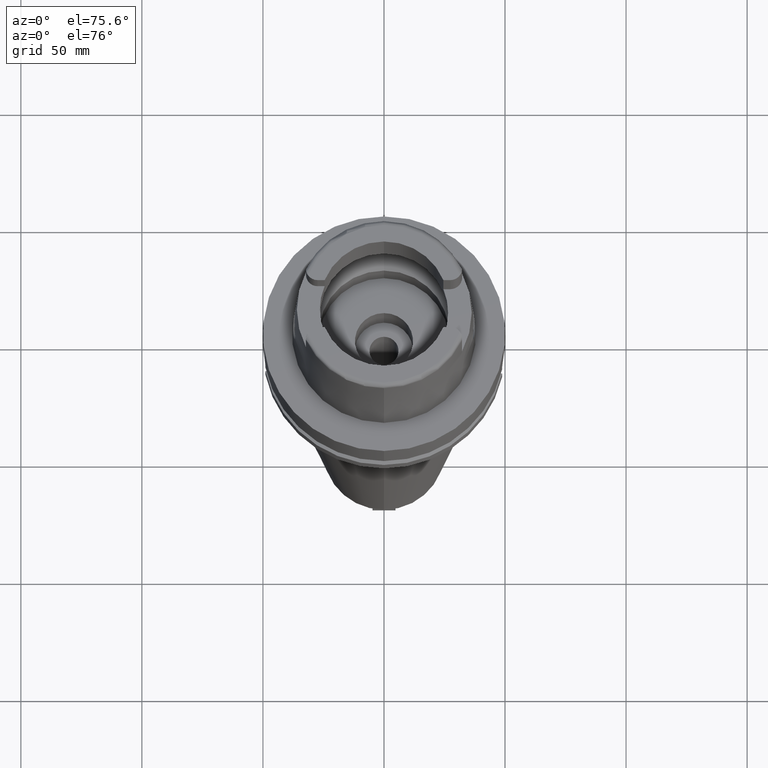
[diagram: clean part render]
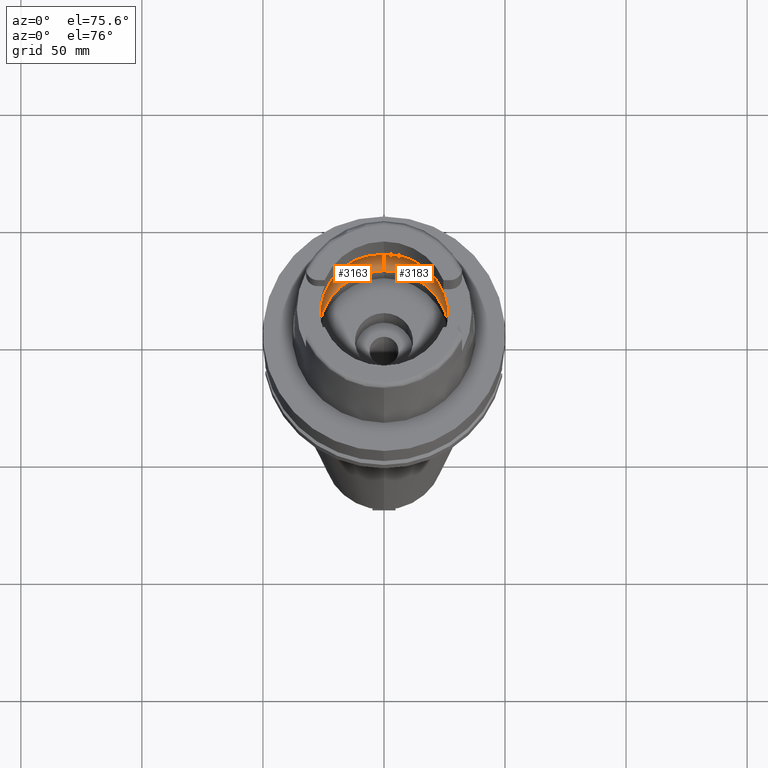
[diagram: same view with one multi-face feature highlighted, each face labeled with its STEP entity id]
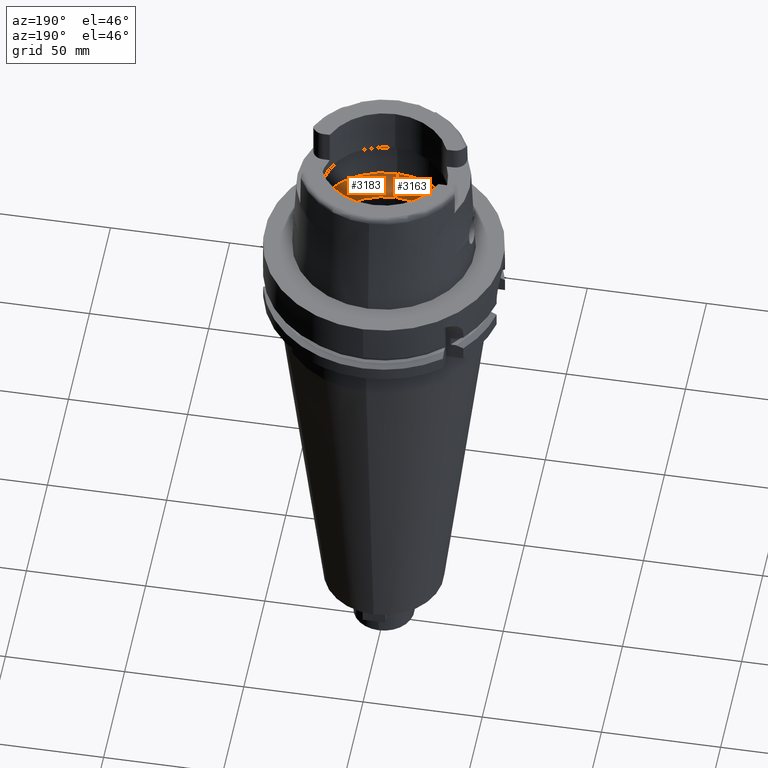
[diagram: same view with one multi-face feature highlighted, each face labeled with its STEP entity id]
A machine part, auxiliary view. The highlighted faces form ONE feature: a constant-radius fillet chain: 2 tangent blend faces with common blend radius 12 mm. The faces share edges in the B-rep.
A second angle (auxiliary view) of the same feature is appended — it is thin or edge-on in the first view.
Their STEP definitions:
[1] entity #3183 (Torus):
#656=CARTESIAN_POINT('',(0.E0,-1.95E1,9.496624327026E0));
#657=DIRECTION('',(-1.E0,0.E0,0.E0));
#658=DIRECTION('',(0.E0,-6.166666666667E-1,-7.872243785746E-1));
#659=AXIS2_PLACEMENT_3D('',#656,#657,#658);
#672=CARTESIAN_POINT('',(3.148971910754E1,0.E0,9.E0));
#673=CARTESIAN_POINT('',(3.148971910754E1,-2.740169050541E-1,9.E0));
#674=CARTESIAN_POINT('',(3.148416957998E1,-8.214776976887E-1,9.037587211562E0));
#675=CARTESIAN_POINT('',(3.145843718743E1,-1.626024717401E0,9.205157265854E0));
#676=CARTESIAN_POINT('',(3.142817844845E1,-2.140614842228E0,9.388245737623E0));
#677=CARTESIAN_POINT('',(3.140918884336E1,-2.390158196044E0,9.496624327026E0));
#682=CARTESIAN_POINT('',(0.E0,0.E0,9.496624327026E0));
#683=DIRECTION('',(0.E0,0.E0,-1.E0));
#684=DIRECTION('',(9.971171061384E-1,-7.587803796965E-2,0.E0));
#685=AXIS2_PLACEMENT_3D('',#682,#683,#684);
#690=CARTESIAN_POINT('',(0.E0,0.E0,4.993178413023E-2));
#691=DIRECTION('',(0.E0,0.E0,1.E0));
#692=DIRECTION('',(0.E0,-1.E0,0.E0));
#693=AXIS2_PLACEMENT_3D('',#690,#691,#692);
#698=CARTESIAN_POINT('',(0.E0,1.95E1,9.496624327026E0));
#699=DIRECTION('',(1.E0,0.E0,0.E0));
#700=DIRECTION('',(0.E0,6.166666666667E-1,-7.872243785746E-1));
#701=AXIS2_PLACEMENT_3D('',#698,#699,#700);
#706=CARTESIAN_POINT('',(0.E0,0.E0,9.496624327026E0));
#707=DIRECTION('',(0.E0,0.E0,-1.E0));
#708=DIRECTION('',(0.E0,1.E0,0.E0));
#709=AXIS2_PLACEMENT_3D('',#706,#707,#708);
#714=CARTESIAN_POINT('',(3.140918884336E1,2.390158196044E0,9.496624327026E0));
#715=CARTESIAN_POINT('',(3.142817835740E1,2.140616038809E0,9.388246257307E0));
#716=CARTESIAN_POINT('',(3.145843708024E1,1.626027635001E0,9.205157956654E0));
#717=CARTESIAN_POINT('',(3.148416964729E1,8.214755204284E-1,9.037586771557E0));
#718=CARTESIAN_POINT('',(3.148971910754E1,2.740159299782E-1,9.E0));
#719=CARTESIAN_POINT('',(3.148971910754E1,0.E0,9.E0));
#731=CARTESIAN_POINT('',(3.140918884336E1,-2.390158196044E0,9.496624327026E0));
#760=CARTESIAN_POINT('',(3.140918884336E1,2.390158196044E0,9.496624327026E0));
#2486=CARTESIAN_POINT('',(0.E0,-3.15E1,9.496624327026E0));
#2487=VERTEX_POINT('',#2486);
#2488=CARTESIAN_POINT('',(0.E0,3.15E1,9.496624327026E0));
#2489=VERTEX_POINT('',#2488);
#2494=VERTEX_POINT('',#731);
#2496=VERTEX_POINT('',#672);
#2497=VERTEX_POINT('',#760);
#2498=CARTESIAN_POINT('',(0.E0,2.69E1,4.993178413023E-2));
#2499=VERTEX_POINT('',#2498);
#2500=CARTESIAN_POINT('',(0.E0,-2.69E1,4.993178413022E-2));
#2501=VERTEX_POINT('',#2500);
#3164=CARTESIAN_POINT('',(0.E0,0.E0,9.496624327026E0));
#3165=DIRECTION('',(0.E0,0.E0,1.E0));
#3166=DIRECTION('',(0.E0,1.E0,0.E0));
#3167=AXIS2_PLACEMENT_3D('',#3164,#3165,#3166);
#3168=TOROIDAL_SURFACE('',#3167,1.95E1,1.2E1);
#3170=ORIENTED_EDGE('',*,*,#3169,.T.);
#3172=ORIENTED_EDGE('',*,*,#3171,.T.);
#3173=ORIENTED_EDGE('',*,*,#3158,.F.);
#3175=ORIENTED_EDGE('',*,*,#3174,.T.);
#3176=ORIENTED_EDGE('',*,*,#3154,.T.);
#3178=ORIENTED_EDGE('',*,*,#3177,.T.);
#3180=ORIENTED_EDGE('',*,*,#3179,.T.);
#3181=EDGE_LOOP('',(#3170,#3172,#3173,#3175,#3176,#3178,#3180));
#3182=FACE_OUTER_BOUND('',#3181,.F.);
#660=CIRCLE('',#659,1.2E1);
#678=B_SPLINE_CURVE_WITH_KNOTS('',3,(#672,#673,#674,#675,#676,#677),
.UNSPECIFIED.,.F.,.F.,(4,1,1,4),(0.E0,3.333333333333E-1,6.666666666667E-1,1.E0),
.UNSPECIFIED.);
#686=CIRCLE('',#685,3.15E1);
#694=CIRCLE('',#693,2.69E1);
#702=CIRCLE('',#701,1.2E1);
#710=CIRCLE('',#709,3.15E1);
#720=B_SPLINE_CURVE_WITH_KNOTS('',3,(#714,#715,#716,#717,#718,#719),
.UNSPECIFIED.,.F.,.F.,(4,1,1,4),(0.E0,3.333333333333E-1,6.666666666667E-1,1.E0),
.UNSPECIFIED.);
#3154=EDGE_CURVE('',#2499,#2489,#702,.T.);
#3158=EDGE_CURVE('',#2501,#2487,#660,.T.);
#3169=EDGE_CURVE('',#2496,#2494,#678,.T.);
#3171=EDGE_CURVE('',#2494,#2487,#686,.T.);
#3174=EDGE_CURVE('',#2501,#2499,#694,.T.);
#3177=EDGE_CURVE('',#2489,#2497,#710,.T.);
#3179=EDGE_CURVE('',#2497,#2496,#720,.T.);
#3183=ADVANCED_FACE('',(#3182),#3168,.F.);
[2] entity #3163 (Torus):
#577=CARTESIAN_POINT('',(-3.140918884336E1,-2.390158196044E0,9.496624327026E0));
#620=CARTESIAN_POINT('',(-3.140918884336E1,-2.390158196044E0,9.496624327026E0));
#621=CARTESIAN_POINT('',(-3.142817848467E1,-2.140614366329E0,9.388245530937E0));
#622=CARTESIAN_POINT('',(-3.145843724500E1,-1.626023551083E0,9.205156904102E0));
#623=CARTESIAN_POINT('',(-3.148416960718E1,-8.214762204955E-1,
9.037587027959E0));
#624=CARTESIAN_POINT('',(-3.148971910754E1,-2.740162681909E-1,9.E0));
#625=CARTESIAN_POINT('',(-3.148971910754E1,0.E0,9.E0));
#630=CARTESIAN_POINT('',(-3.148971910754E1,0.E0,9.E0));
#631=CARTESIAN_POINT('',(-3.148971910754E1,2.740165669665E-1,9.E0));
#632=CARTESIAN_POINT('',(-3.148416962018E1,8.214769982256E-1,9.037586954605E0));
#633=CARTESIAN_POINT('',(-3.145843702194E1,1.626028819033E0,9.205158323105E0));
#634=CARTESIAN_POINT('',(-3.142817832063E1,2.140616521958E0,9.388246467142E0));
#635=CARTESIAN_POINT('',(-3.140918884336E1,2.390158196044E0,9.496624327026E0));
#640=CARTESIAN_POINT('',(0.E0,0.E0,9.496624327026E0));
#641=DIRECTION('',(0.E0,0.E0,-1.E0));
#642=DIRECTION('',(-9.971171061384E-1,7.587803796965E-2,0.E0));
#643=AXIS2_PLACEMENT_3D('',#640,#641,#642);
#648=CARTESIAN_POINT('',(0.E0,0.E0,4.993178413022E-2));
#649=DIRECTION('',(0.E0,0.E0,1.E0));
#650=DIRECTION('',(0.E0,1.E0,0.E0));
#651=AXIS2_PLACEMENT_3D('',#648,#649,#650);
#656=CARTESIAN_POINT('',(0.E0,-1.95E1,9.496624327026E0));
#657=DIRECTION('',(-1.E0,0.E0,0.E0));
#658=DIRECTION('',(0.E0,-6.166666666667E-1,-7.872243785746E-1));
#659=AXIS2_PLACEMENT_3D('',#656,#657,#658);
#664=CARTESIAN_POINT('',(0.E0,0.E0,9.496624327026E0));
#665=DIRECTION('',(0.E0,0.E0,-1.E0));
#666=DIRECTION('',(0.E0,-1.E0,0.E0));
#667=AXIS2_PLACEMENT_3D('',#664,#665,#666);
#698=CARTESIAN_POINT('',(0.E0,1.95E1,9.496624327026E0));
#699=DIRECTION('',(1.E0,0.E0,0.E0));
#700=DIRECTION('',(0.E0,6.166666666667E-1,-7.872243785746E-1));
#701=AXIS2_PLACEMENT_3D('',#698,#699,#700);
#2485=VERTEX_POINT('',#577);
#2486=CARTESIAN_POINT('',(0.E0,-3.15E1,9.496624327026E0));
#2487=VERTEX_POINT('',#2486);
#2488=CARTESIAN_POINT('',(0.E0,3.15E1,9.496624327026E0));
#2489=VERTEX_POINT('',#2488);
#2490=CARTESIAN_POINT('',(-3.140918884336E1,2.390158196044E0,9.496624327026E0));
#2491=VERTEX_POINT('',#2490);
#2492=CARTESIAN_POINT('',(-3.148971910754E1,0.E0,9.E0));
#2493=VERTEX_POINT('',#2492);
#2498=CARTESIAN_POINT('',(0.E0,2.69E1,4.993178413023E-2));
#2499=VERTEX_POINT('',#2498);
#2500=CARTESIAN_POINT('',(0.E0,-2.69E1,4.993178413022E-2));
#2501=VERTEX_POINT('',#2500);
#3146=CARTESIAN_POINT('',(0.E0,0.E0,9.496624327026E0));
#3147=DIRECTION('',(0.E0,0.E0,1.E0));
#3148=DIRECTION('',(0.E0,1.E0,0.E0));
#3149=AXIS2_PLACEMENT_3D('',#3146,#3147,#3148);
#3150=TOROIDAL_SURFACE('',#3149,1.95E1,1.2E1);
#3151=ORIENTED_EDGE('',*,*,#3127,.T.);
#3152=ORIENTED_EDGE('',*,*,#3138,.T.);
#3153=ORIENTED_EDGE('',*,*,#3109,.T.);
#3155=ORIENTED_EDGE('',*,*,#3154,.F.);
#3157=ORIENTED_EDGE('',*,*,#3156,.T.);
#3159=ORIENTED_EDGE('',*,*,#3158,.T.);
#3160=ORIENTED_EDGE('',*,*,#3102,.T.);
#3161=EDGE_LOOP('',(#3151,#3152,#3153,#3155,#3157,#3159,#3160));
#3162=FACE_OUTER_BOUND('',#3161,.F.);
#626=B_SPLINE_CURVE_WITH_KNOTS('',3,(#620,#621,#622,#623,#624,#625),
.UNSPECIFIED.,.F.,.F.,(4,1,1,4),(0.E0,3.333333333333E-1,6.666666666667E-1,1.E0),
.UNSPECIFIED.);
#636=B_SPLINE_CURVE_WITH_KNOTS('',3,(#630,#631,#632,#633,#634,#635),
.UNSPECIFIED.,.F.,.F.,(4,1,1,4),(0.E0,3.333333333333E-1,6.666666666667E-1,1.E0),
.UNSPECIFIED.);
#644=CIRCLE('',#643,3.15E1);
#652=CIRCLE('',#651,2.69E1);
#660=CIRCLE('',#659,1.2E1);
#668=CIRCLE('',#667,3.15E1);
#702=CIRCLE('',#701,1.2E1);
#3102=EDGE_CURVE('',#2487,#2485,#668,.T.);
#3109=EDGE_CURVE('',#2491,#2489,#644,.T.);
#3127=EDGE_CURVE('',#2485,#2493,#626,.T.);
#3138=EDGE_CURVE('',#2493,#2491,#636,.T.);
#3154=EDGE_CURVE('',#2499,#2489,#702,.T.);
#3156=EDGE_CURVE('',#2499,#2501,#652,.T.);
#3158=EDGE_CURVE('',#2501,#2487,#660,.T.);
#3163=ADVANCED_FACE('',(#3162),#3150,.F.);